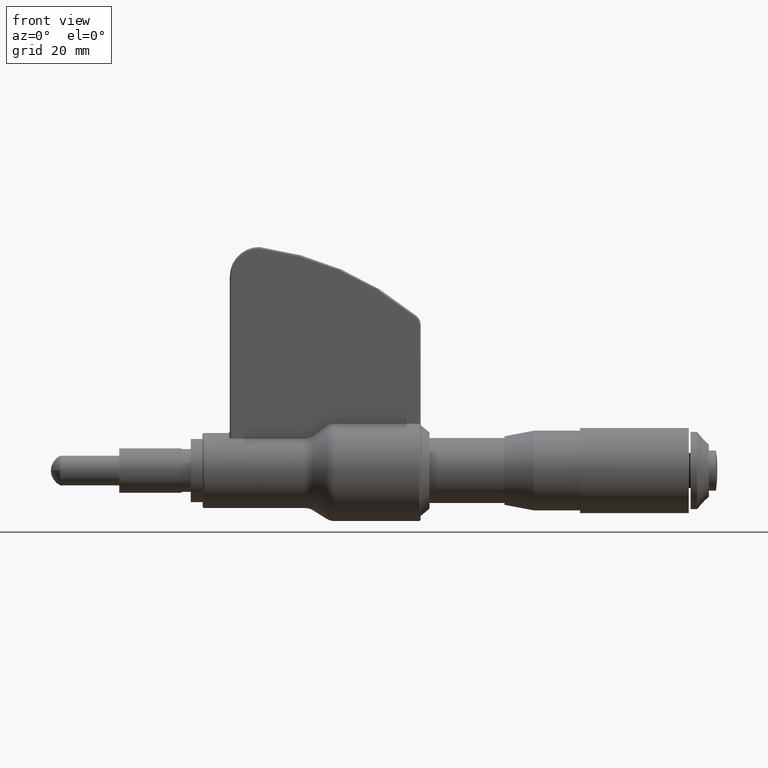
[diagram: clean part render]
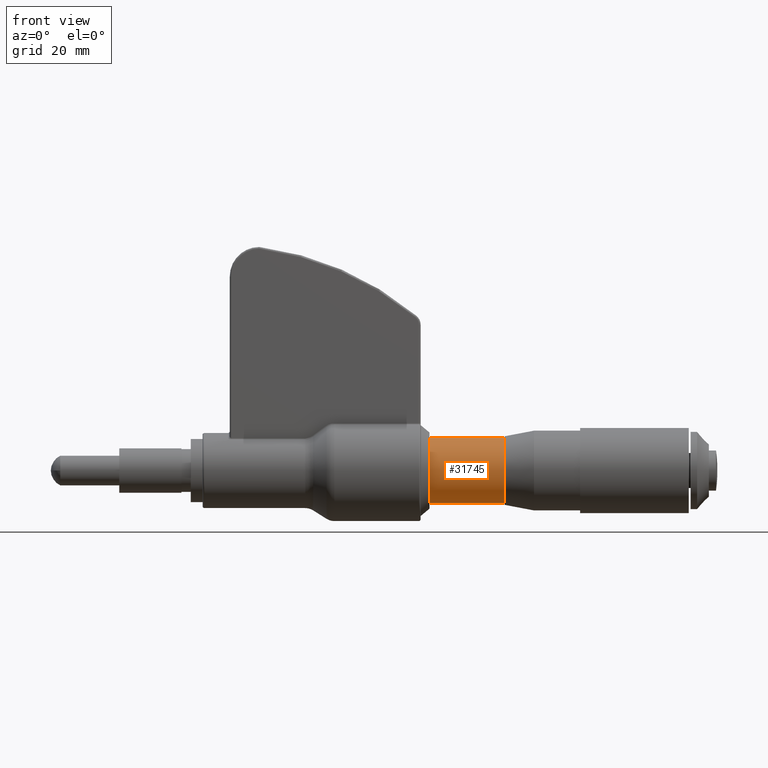
[diagram: same view with one face highlighted and labeled with its STEP entity id]
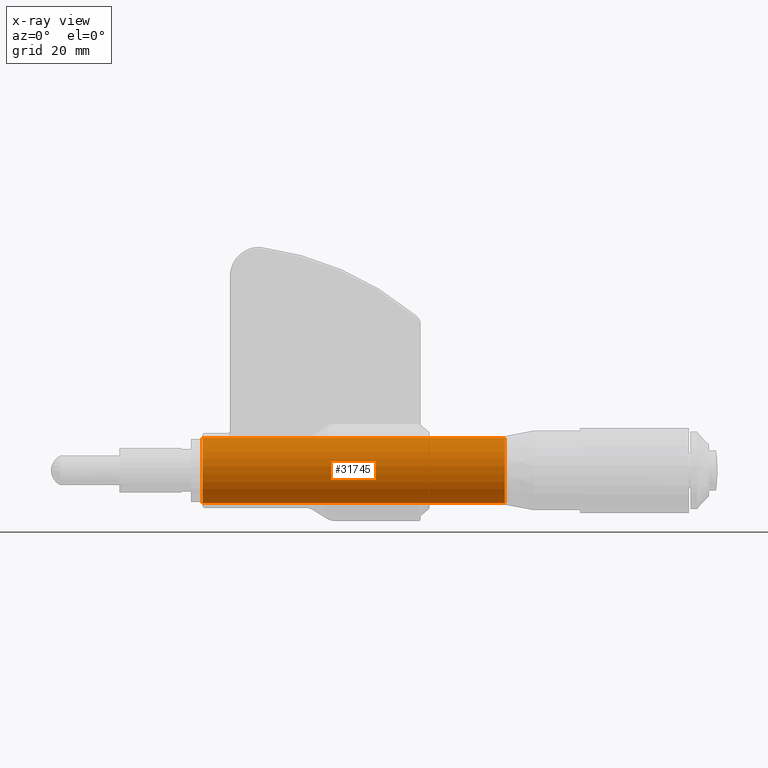
[diagram: x-ray of the same camera — body ghosted, the highlighted face saturated]
A machine part, front view. The second image highlights one B-rep face of the part: STEP entity #31745.
The next image is the same camera in x-ray: the body ghosted, the highlighted face saturated — about 0% of this face is hidden behind the body in this view.
In plain terms, the highlighted cylindrical surface (edge-blend (fillet) strip) has radius 6.985 mm, axis along (-1, 0, 0).
Its self-contained STEP definition (entity closure, byte-faithful):
#30248 = VERTEX_POINT ( 'NONE', #42848 ) ;
#30251 = EDGE_CURVE ( 'NONE', #30248, #30252, #42896, .T. ) ;
#30252 = VERTEX_POINT ( 'NONE', #43461 ) ;
#30256 = VERTEX_POINT ( 'NONE', #43450 ) ;
#30258 = VERTEX_POINT ( 'NONE', #43449 ) ;
#30370 = EDGE_CURVE ( 'NONE', #30258, #30256, #43681, .T. ) ;
#31616 = EDGE_LOOP ( 'NONE', ( #31618, #31620, #31622, #31625 ) ) ;
#31618 = ORIENTED_EDGE ( 'NONE', *, *, #30251, .F. ) ;
#31620 = ORIENTED_EDGE ( 'NONE', *, *, #31641, .T. ) ;
#31622 = ORIENTED_EDGE ( 'NONE', *, *, #30370, .T. ) ;
#31625 = ORIENTED_EDGE ( 'NONE', *, *, #31626, .F. ) ;
#31626 = EDGE_CURVE ( 'NONE', #30252, #30256, #47102, .T. ) ;
#31641 = EDGE_CURVE ( 'NONE', #30248, #30258, #47163, .T. ) ;
#31745 = ADVANCED_FACE ( 'NONE', ( #47356 ), #47337, .T. ) ;
#41845 = DIRECTION ( 'NONE',  ( -1.000000000000000000, 0.0000000000000000000, 0.0000000000000000000 ) ) ;
#42848 = CARTESIAN_POINT ( 'NONE',  ( 2.554999999999999300, 3.367667473011539400E-017, -0.2750000000000001900 ) ) ;
#42893 = VECTOR ( 'NONE', #41845, 39.37007874015748100 ) ;
#42894 = CARTESIAN_POINT ( 'NONE',  ( -1.285000000000000400, 3.367667473011537600E-017, -0.2750000000000000200 ) ) ;
#42896 = LINE ( 'NONE', #42894, #42893 ) ;
#43449 = CARTESIAN_POINT ( 'NONE',  ( 2.554999999999999300, 0.0000000000000000000, 0.2750000000000001900 ) ) ;
#43450 = CARTESIAN_POINT ( 'NONE',  ( 0.0000000000000000000, 0.0000000000000000000, 0.2749999999999998600 ) ) ;
#43461 = CARTESIAN_POINT ( 'NONE',  ( 0.0000000000000000000, 3.367667473011536400E-017, -0.2749999999999998600 ) ) ;
#43677 = DIRECTION ( 'NONE',  ( -1.000000000000000000, 0.0000000000000000000, 0.0000000000000000000 ) ) ;
#43679 = VECTOR ( 'NONE', #43677, 39.37007874015748100 ) ;
#43680 = CARTESIAN_POINT ( 'NONE',  ( -1.285000000000000400, 0.0000000000000000000, 0.2750000000000000200 ) ) ;
#43681 = LINE ( 'NONE', #43680, #43679 ) ;
#47099 = DIRECTION ( 'NONE',  ( 0.0000000000000000000, 0.0000000000000000000, 1.000000000000000000 ) ) ;
#47100 = DIRECTION ( 'NONE',  ( -1.000000000000000000, 0.0000000000000000000, 0.0000000000000000000 ) ) ;
#47101 = AXIS2_PLACEMENT_3D ( 'NONE', #47108, #47100, #47099 ) ;
#47102 = CIRCLE ( 'NONE', #47101, 0.2749999999999998600 ) ;
#47108 = CARTESIAN_POINT ( 'NONE',  ( 0.0000000000000000000, 0.0000000000000000000, 0.0000000000000000000 ) ) ;
#47159 = DIRECTION ( 'NONE',  ( 0.0000000000000000000, 0.0000000000000000000, 1.000000000000000000 ) ) ;
#47160 = DIRECTION ( 'NONE',  ( -1.000000000000000000, 0.0000000000000000000, 0.0000000000000000000 ) ) ;
#47161 = CARTESIAN_POINT ( 'NONE',  ( 2.554999999999999300, 0.0000000000000000000, 0.0000000000000000000 ) ) ;
#47162 = AXIS2_PLACEMENT_3D ( 'NONE', #47161, #47160, #47159 ) ;
#47163 = CIRCLE ( 'NONE', #47162, 0.2750000000000001900 ) ;
#47336 = AXIS2_PLACEMENT_3D ( 'NONE', #47338, #47400, #47399 ) ;
#47337 = CYLINDRICAL_SURFACE ( 'NONE', #47336, 0.2750000000000000200 ) ;
#47338 = CARTESIAN_POINT ( 'NONE',  ( -1.285000000000000400, 0.0000000000000000000, 0.0000000000000000000 ) ) ;
#47356 = FACE_OUTER_BOUND ( 'NONE', #31616, .T. ) ;
#47399 = DIRECTION ( 'NONE',  ( 0.0000000000000000000, 0.0000000000000000000, 1.000000000000000000 ) ) ;
#47400 = DIRECTION ( 'NONE',  ( -1.000000000000000000, 0.0000000000000000000, 0.0000000000000000000 ) ) ;